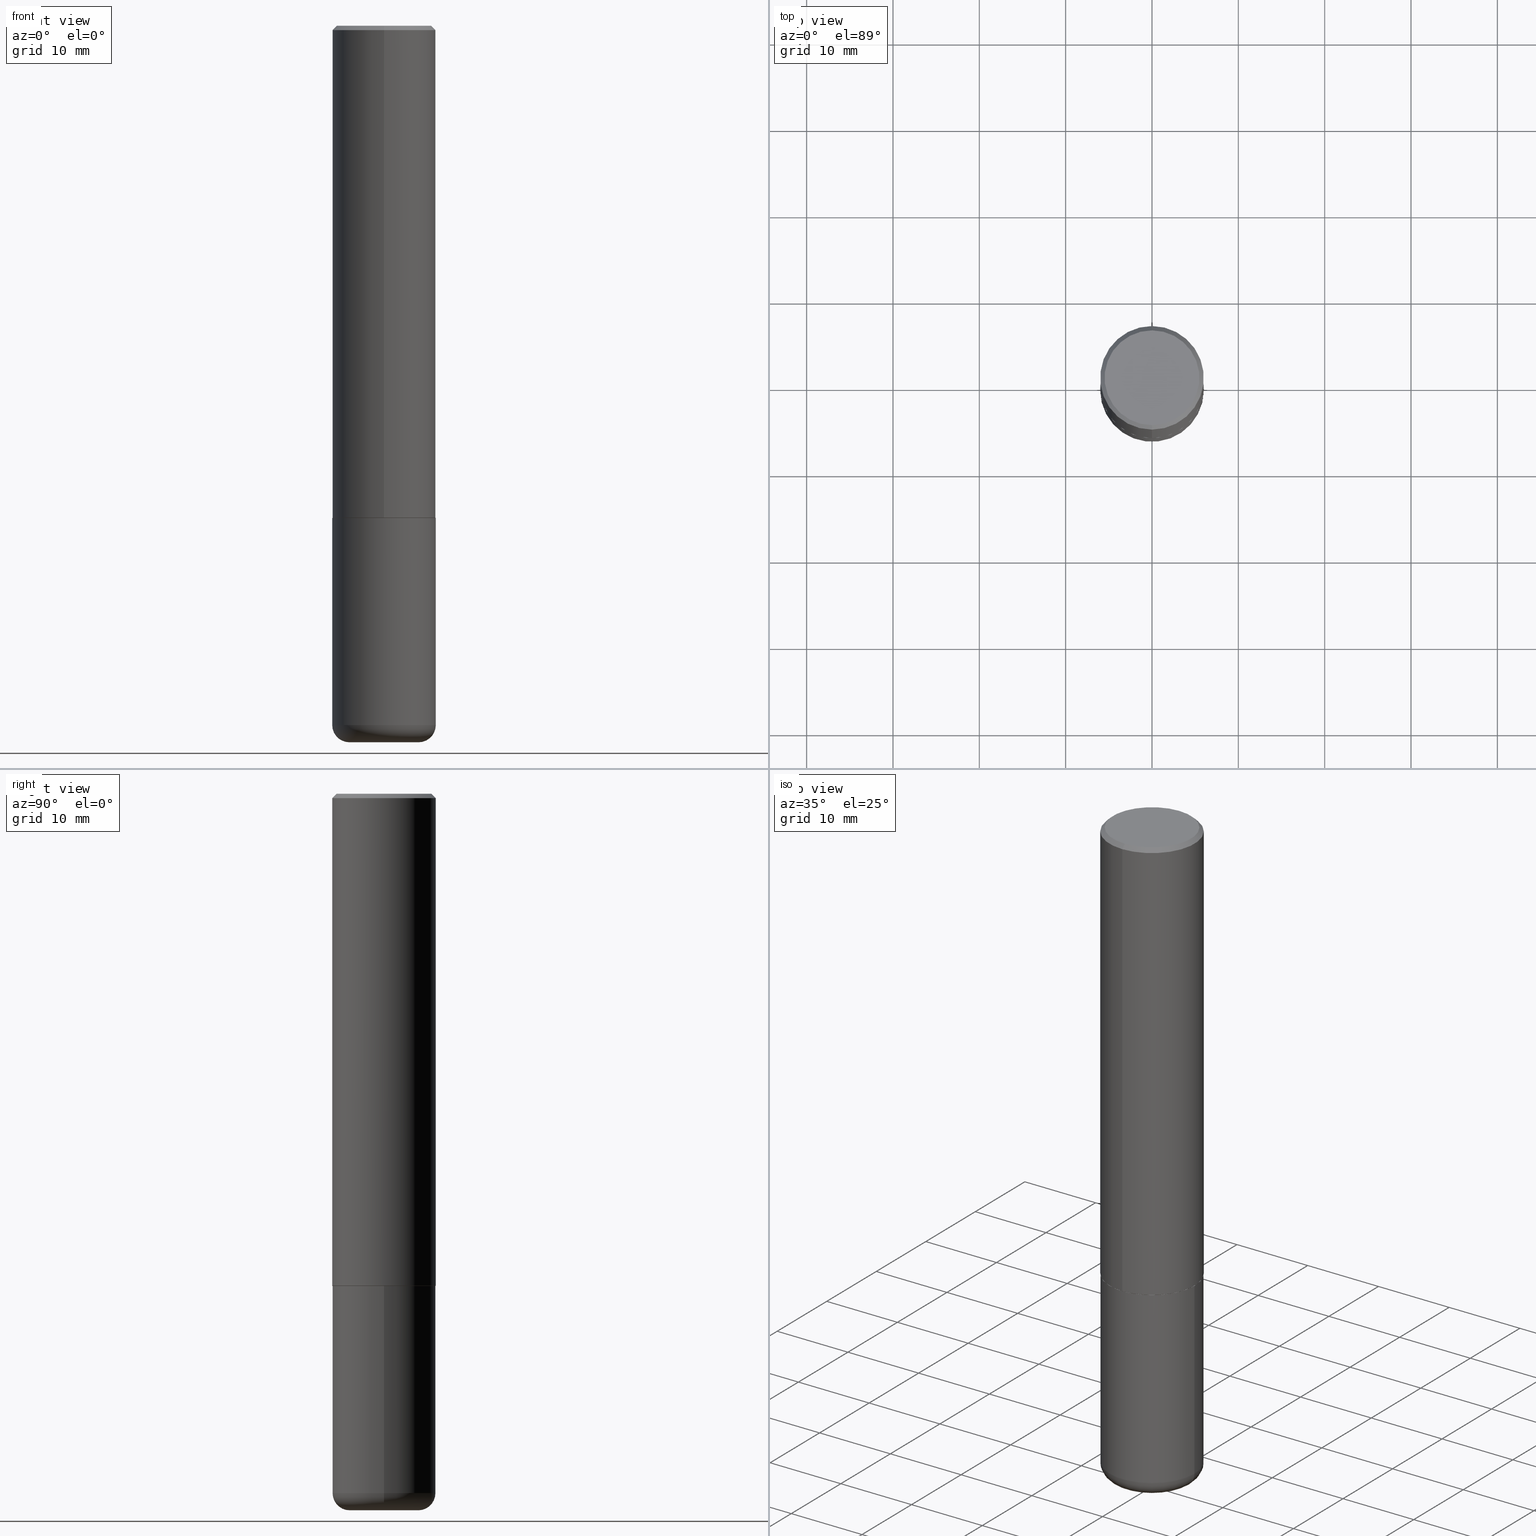
[diagram: canonical four-view strip — front | top / right | iso, engineering-drawing reading convention]
A machine part, canonical four-view strip (front | top / right | iso — engineering-drawing reading convention). The complete STEP part file that produces these views, byte-faithful:
ISO-10303-21;
HEADER;
FILE_DESCRIPTION (( 'STEP AP203' ),
    '1' );
FILE_NAME ('44826.STEP',
    '2024-03-04T09:09:32',
    ( '' ),
    ( '' ),
    'SwSTEP 2.0',
    'SolidWorks 2023',
    '' );
FILE_SCHEMA (( 'CONFIG_CONTROL_DESIGN' ));
ENDSEC;

DATA;
#1 = CARTESIAN_POINT ( 'NONE',  ( 1.509716530915772493E-15, 0.2162000000000002531, -8.528219716884274553E-16 ) ) ;
#2 = LENGTH_MEASURE_WITH_UNIT ( LENGTH_MEASURE( 0.02539999999999999897 ), #323 );
#3 = FACE_OUTER_BOUND ( 'NONE', #381, .T. ) ;
#4 = DIRECTION ( 'NONE',  ( -2.445468806185136597E-29, 3.491481338843145583E-15, 1.000000000000000000 ) ) ;
#5 = APPLICATION_PROTOCOL_DEFINITION ( 'international standard', 'config_control_design', 1994, #225 ) ;
#6 = COORDINATED_UNIVERSAL_TIME_OFFSET ( 5, 0, .BEHIND. ) ;
#7 = CARTESIAN_POINT ( 'NONE',  ( 1.678301941865357577E-15, 0.2362000000000001598, -8.242244922156373274E-16 ) ) ;
#8 = APPROVAL_STATUS ( 'not_yet_approved' ) ;
#9 = ADVANCED_FACE ( 'NONE', ( #148 ), #133, .F. ) ;
#10 = CYLINDRICAL_SURFACE ( 'NONE', #312, 0.2361999999999999933 ) ;
#11 = VECTOR ( 'NONE', #412, 39.37007874015748143 ) ;
#12 = CARTESIAN_POINT ( 'NONE',  ( -1.649375784469497117E-15, -0.2362000000000001598, 8.242244922156373274E-16 ) ) ;
#13 = DIRECTION ( 'NONE',  ( -2.446838791383407035E-29, 3.489519442064507417E-15, 1.000000000000000000 ) ) ;
#14 = EDGE_LOOP ( 'NONE', ( #418, #188 ) ) ;
#15 = ORIENTED_EDGE ( 'NONE', *, *, #351, .T. ) ;
#16 = LINE ( 'NONE', #164, #355 ) ;
#17 = DIRECTION ( 'NONE',  ( -2.446838791383407035E-29, 3.489519442064507417E-15, 1.000000000000000000 ) ) ;
#18 = VECTOR ( 'NONE', #51, 39.37007874015748143 ) ;
#19 = FACE_OUTER_BOUND ( 'NONE', #87, .T. ) ;
#20 = LINE ( 'NONE', #140, #11 ) ;
#21 = CARTESIAN_POINT ( 'NONE',  ( 5.490950931743504079E-29, -7.830830579936960724E-15, -2.244099999999999984 ) ) ;
#22 = LOCAL_TIME ( 4, 9, 32.00000000000000000, #6 ) ;
#23 = EDGE_CURVE ( 'NONE', #155, #73, #348, .T. ) ;
#24 = EDGE_CURVE ( 'NONE', #192, #155, #195, .T. ) ;
#25 = CIRCLE ( 'NONE', #268, 0.2162000000000002531 ) ;
#26 = CARTESIAN_POINT ( 'NONE',  ( 0.000000000000000000, 0.000000000000000000, 0.000000000000000000 ) ) ;
#27 = ORIENTED_EDGE ( 'NONE', *, *, #352, .F. ) ;
#28 = EDGE_LOOP ( 'NONE', ( #15, #145, #156, #407 ) ) ;
#29 = ORIENTED_EDGE ( 'NONE', *, *, #142, .T. ) ;
#30 = AXIS2_PLACEMENT_3D ( 'NONE', #387, #89, #34 ) ;
#31 = ORIENTED_EDGE ( 'NONE', *, *, #79, .F. ) ;
#32 = APPROVAL_STATUS ( 'not_yet_approved' ) ;
#33 = DIRECTION ( 'NONE',  ( 2.446838791383406475E-29, -3.489519442064507417E-15, -1.000000000000000000 ) ) ;
#34 = DIRECTION ( 'NONE',  ( 1.000000000000000000, -6.982962677686266711E-15, 4.883557194083113462E-29 ) ) ;
#35 = ORIENTED_EDGE ( 'NONE', *, *, #285, .T. ) ;
#36 = SECURITY_CLASSIFICATION ( '', '', #78 ) ;
#37 = PERSON_AND_ORGANIZATION ( #394, #191 ) ;
#38 = CARTESIAN_POINT ( 'NONE',  ( 0.2361999999999999933, -1.649375784469496131E-15, 1.151752954443000088E-29 ) ) ;
#39 = ORIENTED_EDGE ( 'NONE', *, *, #369, .T. ) ;
#40 = CARTESIAN_POINT ( 'NONE',  ( -0.1575000000000000011, -9.873020404910514350E-15, -3.267700000000000049 ) ) ;
#41 = DIRECTION ( 'NONE',  ( -2.446838791383407035E-29, 3.489519442064507417E-15, 1.000000000000000000 ) ) ;
#42 = ORIENTED_EDGE ( 'NONE', *, *, #207, .T. ) ;
#43 = COORDINATED_UNIVERSAL_TIME_OFFSET ( 5, 0, .BEHIND. ) ;
#44 = CARTESIAN_POINT ( 'NONE',  ( -0.2361999999999999655, -9.456032047705438285E-15, -3.189000000000000501 ) ) ;
#45 = CARTESIAN_POINT ( 'NONE',  ( 4.814785055848277304E-45, -6.866527586905309216E-31, -1.967757366281604609E-16 ) ) ;
#46 = CC_DESIGN_SECURITY_CLASSIFICATION ( #36, ( #206 ) ) ;
#47 = CC_DESIGN_PERSON_AND_ORGANIZATION_ASSIGNMENT ( #175, #346, ( #206 ) ) ;
#48 = CARTESIAN_POINT ( 'NONE',  ( 7.991058417971171713E-29, -1.140911357093774644E-14, -3.267700000000000049 ) ) ;
#49 = AXIS2_PLACEMENT_3D ( 'NONE', #238, #13, #132 ) ;
#50 = CYLINDRICAL_SURFACE ( 'NONE', #121, 0.2361999999999999933 ) ;
#51 = DIRECTION ( 'NONE',  ( 5.024295867789349022E-15, 0.7071067811867310926, 0.7071067811863640529 ) ) ;
#52 = ADVANCED_FACE ( 'NONE', ( #218 ), #353, .T. ) ;
#53 = APPROVAL_PERSON_ORGANIZATION ( #297, #304, #91 ) ;
#54 = EDGE_CURVE ( 'NONE', #321, #182, #66, .T. ) ;
#55 = DIMENSIONAL_EXPONENTS ( 1.000000000000000000, 0.000000000000000000, 0.000000000000000000, 0.000000000000000000, 0.000000000000000000, 0.000000000000000000, 0.000000000000000000 ) ;
#56 = DIRECTION ( 'NONE',  ( -2.445468806185136597E-29, 3.491481338843145583E-15, 1.000000000000000000 ) ) ;
#57 = CIRCLE ( 'NONE', #298, 0.2351999999999999924 ) ;
#58 = DIRECTION ( 'NONE',  ( 1.000000000000000000, -6.982962677686266711E-15, 4.883557194083113462E-29 ) ) ;
#59 = ADVANCED_FACE ( 'NONE', ( #3 ), #349, .T. ) ;
#60 = ORIENTED_EDGE ( 'NONE', *, *, #24, .T. ) ;
#61 = FACE_OUTER_BOUND ( 'NONE', #253, .T. ) ;
#62 = UNCERTAINTY_MEASURE_WITH_UNIT (LENGTH_MEASURE( 1.000000000000000082E-05 ), #176, 'distance_accuracy_value', 'NONE');
#63 = CARTESIAN_POINT ( 'NONE',  ( 4.893677582766832883E-31, -6.979038884129041064E-17, -0.02000000000000007674 ) ) ;
#64 = CALENDAR_DATE ( 2024, 4, 3 ) ;
#65 = CLOSED_SHELL ( 'NONE', ( #93, #59, #9, #378, #240, #83 ) ) ;
#66 = CIRCLE ( 'NONE', #168, 0.2362000000000000210 ) ;
#67 = DIRECTION ( 'NONE',  ( 2.438088387897960049E-29, -3.491481338843145188E-15, -1.000000000000000000 ) ) ;
#68 = ORIENTED_EDGE ( 'NONE', *, *, #331, .F. ) ;
#69 = CALENDAR_DATE ( 2024, 4, 3 ) ;
#70 = ORIENTED_EDGE ( 'NONE', *, *, #54, .T. ) ;
#71 = ORIENTED_EDGE ( 'NONE', *, *, #134, .T. ) ;
#72 = DIRECTION ( 'NONE',  ( -2.445468806185136597E-29, 3.491481338843145583E-15, 1.000000000000000000 ) ) ;
#73 = VERTEX_POINT ( 'NONE', #339 ) ;
#74 = ORIENTED_EDGE ( 'NONE', *, *, #285, .F. ) ;
#75 = CARTESIAN_POINT ( 'NONE',  ( 0.000000000000000000, 0.000000000000000000, 0.000000000000000000 ) ) ;
#76 = ORIENTED_EDGE ( 'NONE', *, *, #244, .T. ) ;
#77 = CARTESIAN_POINT ( 'NONE',  ( 0.000000000000000000, 0.000000000000000000, 0.000000000000000000 ) ) ;
#78 = SECURITY_CLASSIFICATION_LEVEL ( 'unclassified' ) ;
#79 = EDGE_CURVE ( 'NONE', #332, #360, #106, .T. ) ;
#80 = CIRCLE ( 'NONE', #212, 0.2362000000000002986 ) ;
#81 = AXIS2_PLACEMENT_3D ( 'NONE', #248, #291, #126 ) ;
#82 = PRODUCT ( '44826', '44826', '', ( #88 ) ) ;
#83 = ADVANCED_FACE ( 'NONE', ( #368 ), #252, .T. ) ;
#84 = PERSON_AND_ORGANIZATION_ROLE ( 'classification_officer' ) ;
#85 = AXIS2_PLACEMENT_3D ( 'NONE', #396, #311, #101 ) ;
#86 = DIRECTION ( 'NONE',  ( -6.982962677686265133E-15, -1.000000000000000000, 3.484499991918703113E-15 ) ) ;
#87 = EDGE_LOOP ( 'NONE', ( #260, #393 ) ) ;
#88 = MECHANICAL_CONTEXT ( 'NONE', #225, 'mechanical' ) ;
#89 = DIRECTION ( 'NONE',  ( -2.445468806185136597E-29, 3.491481338843145583E-15, 1.000000000000000000 ) ) ;
#90 = VERTEX_POINT ( 'NONE', #295 ) ;
#91 = APPROVAL_ROLE ( '' ) ;
#92 = PERSON_AND_ORGANIZATION_ROLE ( 'creator' ) ;
#93 = ADVANCED_FACE ( 'NONE', ( #213 ), #10, .T. ) ;
#94 = DIRECTION ( 'NONE',  ( 2.438088387897960049E-29, -3.491481338843145188E-15, -1.000000000000000000 ) ) ;
#95 = ORIENTED_EDGE ( 'NONE', *, *, #352, .T. ) ;
#96 = SHAPE_DEFINITION_REPRESENTATION ( #171, #317 ) ;
#97 = CARTESIAN_POINT ( 'NONE',  ( 5.490950931743504079E-29, -7.830830579936960724E-15, -2.244099999999999984 ) ) ;
#98 = COORDINATED_UNIVERSAL_TIME_OFFSET ( 5, 0, .BEHIND. ) ;
#99 = CARTESIAN_POINT ( 'NONE',  ( 0.000000000000000000, 0.000000000000000000, 0.000000000000000000 ) ) ;
#100 = DIRECTION ( 'NONE',  ( -2.445468806185136597E-29, 3.491481338843145583E-15, 1.000000000000000000 ) ) ;
#101 = DIRECTION ( 'NONE',  ( 1.000000000000000000, -6.982962677686275388E-15, 0.000000000000000000 ) ) ;
#102 = CC_DESIGN_PERSON_AND_ORGANIZATION_ASSIGNMENT ( #409, #84, ( #36 ) ) ;
#103 = CARTESIAN_POINT ( 'NONE',  ( 0.1575000000000000011, -1.250893019267333313E-14, -3.267700000000000049 ) ) ;
#104 = PERSON_AND_ORGANIZATION ( #394, #191 ) ;
#105 = LINE ( 'NONE', #263, #18 ) ;
#106 = CIRCLE ( 'NONE', #81, 0.1575000000000000011 ) ;
#107 = DIRECTION ( 'NONE',  ( -2.446838791383407035E-29, 3.489519442064507417E-15, 1.000000000000000000 ) ) ;
#108 = LINE ( 'NONE', #204, #376 ) ;
#109 = FACE_OUTER_BOUND ( 'NONE', #28, .T. ) ;
#110 = CARTESIAN_POINT ( 'NONE',  ( 4.893677582766832883E-31, -6.979038884129041064E-17, -0.02000000000000007674 ) ) ;
#111 = APPROVAL ( #251, 'UNSPECIFIED' ) ;
#112 = VECTOR ( 'NONE', #299, 39.37007874015748143 ) ;
#113 = AXIS2_PLACEMENT_3D ( 'NONE', #307, #265, #398 ) ;
#114 = VERTEX_POINT ( 'NONE', #266 ) ;
#115 = EDGE_CURVE ( 'NONE', #90, #182, #270, .T. ) ;
#116 = DIRECTION ( 'NONE',  ( 1.000000000000000000, -6.982962677686265133E-15, 0.000000000000000000 ) ) ;
#117 = AXIS2_PLACEMENT_3D ( 'NONE', #215, #67, #184 ) ;
#118 = CIRCLE ( 'NONE', #403, 0.2362000000000002986 ) ;
#119 = ORIENTED_EDGE ( 'NONE', *, *, #120, .F. ) ;
#120 = EDGE_CURVE ( 'NONE', #192, #283, #326, .T. ) ;
#121 = AXIS2_PLACEMENT_3D ( 'NONE', #77, #100, #137 ) ;
#122 = EDGE_LOOP ( 'NONE', ( #385, #162, #95, #232 ) ) ;
#123 = CARTESIAN_POINT ( 'NONE',  ( 1.649375784469496722E-15, 0.2361999999999999655, -0.02000000000000090247 ) ) ;
#124 = EDGE_CURVE ( 'NONE', #114, #321, #108, .T. ) ;
#125 = APPROVAL_DATE_TIME ( #329, #111 ) ;
#126 = DIRECTION ( 'NONE',  ( 1.000000000000000000, -6.982962677686261977E-15, 0.000000000000000000 ) ) ;
#127 = VECTOR ( 'NONE', #187, 39.37007874015748143 ) ;
#128 = ORIENTED_EDGE ( 'NONE', *, *, #207, .F. ) ;
#129 = VERTEX_POINT ( 'NONE', #166 ) ;
#130 = CARTESIAN_POINT ( 'NONE',  ( -0.1575000000000000011, -1.001522918074863550E-14, -3.189000000000000501 ) ) ;
#131 = PERSON_AND_ORGANIZATION ( #394, #191 ) ;
#132 = DIRECTION ( 'NONE',  ( -6.982962677686265133E-15, -1.000000000000000000, 3.484499991918703113E-15 ) ) ;
#133 = PLANE ( 'NONE',  #117 ) ;
#134 = EDGE_CURVE ( 'NONE', #365, #287, #150, .T. ) ;
#135 = DIRECTION ( 'NONE',  ( -6.982962677686265922E-15, -1.000000000000000000, 3.489519442064507812E-15 ) ) ;
#136 = DIRECTION ( 'NONE',  ( 1.000000000000000000, -6.982962677686266711E-15, 4.876176775795936353E-29 ) ) ;
#137 = DIRECTION ( 'NONE',  ( 1.000000000000000000, -6.982962677686266711E-15, 4.876176775795936353E-29 ) ) ;
#138 = TOROIDAL_SURFACE ( 'NONE', #281, 0.1575000000000000011, 0.07869999999999995055 ) ;
#139 = CARTESIAN_POINT ( 'NONE',  ( 5.490950931743504079E-29, -7.830830579936960724E-15, -2.244100000000000428 ) ) ;
#140 = CARTESIAN_POINT ( 'NONE',  ( -0.2361999999999999933, 1.678301941865356591E-15, -1.161852468318208757E-29 ) ) ;
#141 = VECTOR ( 'NONE', #415, 39.37007874015748143 ) ;
#142 = EDGE_CURVE ( 'NONE', #182, #321, #185, .T. ) ;
#143 = APPLICATION_CONTEXT ( 'configuration controlled 3d designs of mechanical parts and assemblies' ) ;
#144 = DIRECTION ( 'NONE',  ( 4.937700262164536209E-15, 0.7071067811865434649, -0.7071067811865516806 ) ) ;
#145 = ORIENTED_EDGE ( 'NONE', *, *, #152, .T. ) ;
#146 = EDGE_LOOP ( 'NONE', ( #417, #42, #60, #391 ) ) ;
#147 = DIRECTION ( 'NONE',  ( -2.446838791383407035E-29, 3.489519442064507417E-15, 1.000000000000000000 ) ) ;
#148 = FACE_OUTER_BOUND ( 'NONE', #14, .T. ) ;
#149 = ORIENTED_EDGE ( 'NONE', *, *, #79, .T. ) ;
#150 = CIRCLE ( 'NONE', #49, 0.2351999999999999924 ) ;
#151 = DIRECTION ( 'NONE',  ( -2.446838791383407035E-29, 3.489519442064507417E-15, 1.000000000000000000 ) ) ;
#152 = EDGE_CURVE ( 'NONE', #365, #209, #105, .T. ) ;
#153 = DATE_AND_TIME ( #220, #22 ) ;
#154 = COORDINATED_UNIVERSAL_TIME_OFFSET ( 5, 0, .BEHIND. ) ;
#155 = VERTEX_POINT ( 'NONE', #269 ) ;
#156 = ORIENTED_EDGE ( 'NONE', *, *, #319, .F. ) ;
#157 = DIRECTION ( 'NONE',  ( -1.000000000000000000, 6.982962677686265922E-15, -4.876176775795935793E-29 ) ) ;
#158 = DIRECTION ( 'NONE',  ( 7.105427357601001859E-15, 1.000000000000000000, -3.491481338843145583E-15 ) ) ;
#159 = COORDINATED_UNIVERSAL_TIME_OFFSET ( 5, 0, .BEHIND. ) ;
#160 = EDGE_CURVE ( 'NONE', #360, #192, #178, .T. ) ;
#161 = AXIS2_PLACEMENT_3D ( 'NONE', #388, #94, #157 ) ;
#162 = ORIENTED_EDGE ( 'NONE', *, *, #183, .T. ) ;
#163 = LOCAL_TIME ( 4, 9, 32.00000000000000000, #43 ) ;
#164 = CARTESIAN_POINT ( 'NONE',  ( -1.642392821791754699E-15, -0.2352000000000078195, -2.244099999999999095 ) ) ;
#165 = CALENDAR_DATE ( 2024, 4, 3 ) ;
#166 = CARTESIAN_POINT ( 'NONE',  ( -1.649375784469443277E-15, -0.2362000000000081257, -2.243099999999999206 ) ) ;
#167 = DIRECTION ( 'NONE',  ( -2.446838791383407035E-29, 3.489519442064507417E-15, 1.000000000000000000 ) ) ;
#168 = AXIS2_PLACEMENT_3D ( 'NONE', #63, #151, #290 ) ;
#169 = CC_DESIGN_PERSON_AND_ORGANIZATION_ASSIGNMENT ( #37, #92, ( #279 ) ) ;
#170 = FACE_OUTER_BOUND ( 'NONE', #358, .T. ) ;
#171 = PRODUCT_DEFINITION_SHAPE ( 'NONE', 'NONE',  #279 ) ;
#172 = LOCAL_TIME ( 4, 9, 32.00000000000000000, #154 ) ;
#173 = PERSON_AND_ORGANIZATION ( #394, #191 ) ;
#174 = CC_DESIGN_PERSON_AND_ORGANIZATION_ASSIGNMENT ( #173, #274, ( #206 ) ) ;
#175 = PERSON_AND_ORGANIZATION ( #394, #191 ) ;
#176 =( CONVERSION_BASED_UNIT ( 'INCH', #2 ) LENGTH_UNIT ( ) NAMED_UNIT ( #55 ) );
#177 = ORIENTED_EDGE ( 'NONE', *, *, #24, .F. ) ;
#178 = CIRCLE ( 'NONE', #85, 0.07869999999999993667 ) ;
#179 = EDGE_CURVE ( 'NONE', #283, #73, #20, .T. ) ;
#180 = CARTESIAN_POINT ( 'NONE',  ( 5.487876547960065873E-29, -7.835233272497903917E-15, -2.244100000000000428 ) ) ;
#181 = CYLINDRICAL_SURFACE ( 'NONE', #410, 0.2362000000000001598 ) ;
#182 = VERTEX_POINT ( 'NONE', #123 ) ;
#183 = EDGE_CURVE ( 'NONE', #209, #129, #118, .T. ) ;
#184 = DIRECTION ( 'NONE',  ( -1.000000000000000000, 6.982962677686265922E-15, -4.876176775795935793E-29 ) ) ;
#185 = CIRCLE ( 'NONE', #400, 0.2362000000000000210 ) ;
#186 = DIRECTION ( 'NONE',  ( 1.000000000000000000, -6.982962677686265133E-15, 0.000000000000000000 ) ) ;
#187 = DIRECTION ( 'NONE',  ( -2.445468806185136877E-29, 3.491481338843145188E-15, 1.000000000000000000 ) ) ;
#188 = ORIENTED_EDGE ( 'NONE', *, *, #242, .T. ) ;
#189 = CARTESIAN_POINT ( 'NONE',  ( 1.678301941865385779E-15, 0.2361999999999924715, -2.243100000000000982 ) ) ;
#190 = EDGE_LOOP ( 'NONE', ( #74, #243, #70, #380 ) ) ;
#191 = ORGANIZATION ( 'UNSPECIFIED', 'UNSPECIFIED', '' ) ;
#192 = VERTEX_POINT ( 'NONE', #357 ) ;
#193 = EDGE_CURVE ( 'NONE', #209, #182, #363, .T. ) ;
#194 = DIRECTION ( 'NONE',  ( 6.982962677686265922E-15, 1.000000000000000000, -3.489519442064507417E-15 ) ) ;
#195 = LINE ( 'NONE', #38, #127 ) ;
#196 = DIRECTION ( 'NONE',  ( -6.982962677686265922E-15, -1.000000000000000000, 3.469747663417772663E-15 ) ) ;
#197 = AXIS2_PLACEMENT_3D ( 'NONE', #48, #72, #261 ) ;
#198 = DIRECTION ( 'NONE',  ( -6.982962677686265133E-15, -1.000000000000000000, 3.484499991918703113E-15 ) ) ;
#199 = AXIS2_PLACEMENT_3D ( 'NONE', #310, #233, #267 ) ;
#200 = CARTESIAN_POINT ( 'NONE',  ( 0.000000000000000000, 0.000000000000000000, 0.000000000000000000 ) ) ;
#201 = LOCAL_TIME ( 4, 9, 32.00000000000000000, #159 ) ;
#202 = DIRECTION ( 'NONE',  ( -6.982962677686265922E-15, -1.000000000000000000, 3.489519442064507417E-15 ) ) ;
#203 = APPROVAL ( #8, 'UNSPECIFIED' ) ;
#204 = CARTESIAN_POINT ( 'NONE',  ( -1.620449627073635276E-15, -0.2362000000000001043, -0.01999999999999925449 ) ) ;
#205 = AXIS2_PLACEMENT_3D ( 'NONE', #45, #401, #202 ) ;
#206 = PRODUCT_DEFINITION_FORMATION_WITH_SPECIFIED_SOURCE ( 'ANY', '', #82, .NOT_KNOWN. ) ;
#207 = EDGE_CURVE ( 'NONE', #283, #192, #308, .T. ) ;
#208 = CIRCLE ( 'NONE', #205, 0.2162000000000002531 ) ;
#209 = VERTEX_POINT ( 'NONE', #189 ) ;
#210 = CC_DESIGN_APPROVAL ( #203, ( #206 ) ) ;
#211 = CARTESIAN_POINT ( 'NONE',  ( 7.798600022924401307E-29, -1.113433398957079310E-14, -3.189000000000000501 ) ) ;
#212 = AXIS2_PLACEMENT_3D ( 'NONE', #395, #344, #196 ) ;
#213 = FACE_OUTER_BOUND ( 'NONE', #302, .T. ) ;
#214 = DIRECTION ( 'NONE',  ( -6.982962677686265922E-15, -1.000000000000000000, 3.489519442064507812E-15 ) ) ;
#215 = CARTESIAN_POINT ( 'NONE',  ( 5.487876547960065873E-29, -7.835233272497903917E-15, -2.244100000000000428 ) ) ;
#216 = CARTESIAN_POINT ( 'NONE',  ( 7.798600022924401307E-29, -1.113433398957079310E-14, -3.189000000000000501 ) ) ;
#217 = PERSON_AND_ORGANIZATION_ROLE ( 'design_owner' ) ;
#218 = FACE_OUTER_BOUND ( 'NONE', #397, .T. ) ;
#219 = ORIENTED_EDGE ( 'NONE', *, *, #23, .F. ) ;
#220 = CALENDAR_DATE ( 2024, 4, 3 ) ;
#221 = AXIS2_PLACEMENT_3D ( 'NONE', #264, #41, #86 ) ;
#222 = DIRECTION ( 'NONE',  ( -2.446838791383407035E-29, 3.489519442064507417E-15, 1.000000000000000000 ) ) ;
#223 = EDGE_LOOP ( 'NONE', ( #356, #31 ) ) ;
#224 = ORIENTED_EDGE ( 'NONE', *, *, #354, .T. ) ;
#225 = APPLICATION_CONTEXT ( 'configuration controlled 3d designs of mechanical parts and assemblies' ) ;
#226 = DIRECTION ( 'NONE',  ( -6.982962677686265133E-15, -1.000000000000000000, 3.484499991918703113E-15 ) ) ;
#227 = DATE_AND_TIME ( #262, #229 ) ;
#228 = ORIENTED_EDGE ( 'NONE', *, *, #120, .T. ) ;
#229 = LOCAL_TIME ( 4, 9, 32.00000000000000000, #98 ) ;
#230 = CYLINDRICAL_SURFACE ( 'NONE', #234, 0.2362000000000001598 ) ;
#231 =( NAMED_UNIT ( * ) PLANE_ANGLE_UNIT ( ) SI_UNIT ( $, .RADIAN. ) );
#232 = ORIENTED_EDGE ( 'NONE', *, *, #142, .F. ) ;
#233 = DIRECTION ( 'NONE',  ( 2.446838791383407035E-29, -3.489519442064507417E-15, -1.000000000000000000 ) ) ;
#234 = AXIS2_PLACEMENT_3D ( 'NONE', #75, #303, #135 ) ;
#235 = PLANE ( 'NONE',  #404 ) ;
#236 = CC_DESIGN_DATE_AND_TIME_ASSIGNMENT ( #372, #250, ( #36 ) ) ;
#237 = FACE_OUTER_BOUND ( 'NONE', #296, .T. ) ;
#238 = CARTESIAN_POINT ( 'NONE',  ( 5.490950931743504079E-29, -7.830830579936960724E-15, -2.244099999999999984 ) ) ;
#239 = AXIS2_PLACEMENT_3D ( 'NONE', #130, #158, #345 ) ;
#240 = ADVANCED_FACE ( 'NONE', ( #320 ), #138, .T. ) ;
#241 = AXIS2_PLACEMENT_3D ( 'NONE', #180, #4, #318 ) ;
#242 = EDGE_CURVE ( 'NONE', #73, #155, #361, .T. ) ;
#243 = ORIENTED_EDGE ( 'NONE', *, *, #124, .T. ) ;
#244 = EDGE_CURVE ( 'NONE', #90, #114, #25, .T. ) ;
#245 = FACE_OUTER_BOUND ( 'NONE', #122, .T. ) ;
#246 = CARTESIAN_POINT ( 'NONE',  ( 5.487876547960065873E-29, -7.835233272497903917E-15, -2.244100000000000428 ) ) ;
#247 =( NAMED_UNIT ( * ) SI_UNIT ( $, .STERADIAN. ) SOLID_ANGLE_UNIT ( ) );
#248 = CARTESIAN_POINT ( 'NONE',  ( 7.991058417971171713E-29, -1.140911357093774644E-14, -3.267700000000000049 ) ) ;
#249 =( GEOMETRIC_REPRESENTATION_CONTEXT ( 3 ) GLOBAL_UNCERTAINTY_ASSIGNED_CONTEXT ( ( #62 ) ) GLOBAL_UNIT_ASSIGNED_CONTEXT ( ( #176, #231, #247 ) ) REPRESENTATION_CONTEXT ( 'NONE', 'WORKASPACE' ) );
#250 = DATE_TIME_ROLE ( 'classification_date' ) ;
#251 = APPROVAL_STATUS ( 'not_yet_approved' ) ;
#252 = PLANE ( 'NONE',  #161 ) ;
#253 = EDGE_LOOP ( 'NONE', ( #76, #35 ) ) ;
#254 = APPROVAL_DATE_TIME ( #153, #304 ) ;
#255 = AXIS2_PLACEMENT_3D ( 'NONE', #280, #408, #116 ) ;
#256 = DIRECTION ( 'NONE',  ( -2.445468806185136597E-29, 3.491481338843145583E-15, 1.000000000000000000 ) ) ;
#257 = APPROVAL_ROLE ( '' ) ;
#258 = ADVANCED_FACE ( 'NONE', ( #245 ), #181, .T. ) ;
#259 = ORIENTED_EDGE ( 'NONE', *, *, #331, .T. ) ;
#260 = ORIENTED_EDGE ( 'NONE', *, *, #351, .F. ) ;
#261 = DIRECTION ( 'NONE',  ( 1.000000000000000000, -6.982962677686261977E-15, 0.000000000000000000 ) ) ;
#262 = CALENDAR_DATE ( 2024, 4, 3 ) ;
#263 = CARTESIAN_POINT ( 'NONE',  ( 1.671196514507810212E-15, 0.2351999999999921653, -2.244100000000000872 ) ) ;
#264 = CARTESIAN_POINT ( 'NONE',  ( 5.490950931743504079E-29, -7.830830579936960724E-15, -2.244099999999999984 ) ) ;
#265 = DIRECTION ( 'NONE',  ( 2.446838791383407035E-29, -3.489519442064507417E-15, -1.000000000000000000 ) ) ;
#266 = CARTESIAN_POINT ( 'NONE',  ( -1.551844647095920733E-15, -0.2162000000000002531, 5.576583667461869735E-16 ) ) ;
#267 = DIRECTION ( 'NONE',  ( 6.982962677686265922E-15, 1.000000000000000000, -3.487819265831411350E-15 ) ) ;
#268 = AXIS2_PLACEMENT_3D ( 'NONE', #322, #147, #289 ) ;
#269 = CARTESIAN_POINT ( 'NONE',  ( 0.2361999999999999933, -9.484609056967400443E-15, -2.244100000000000428 ) ) ;
#270 = LINE ( 'NONE', #277, #275 ) ;
#271 = DIRECTION ( 'NONE',  ( -2.446838791383406475E-29, 3.489519442064507417E-15, 1.000000000000000000 ) ) ;
#272 = CC_DESIGN_APPROVAL ( #304, ( #36 ) ) ;
#273 = ADVANCED_FACE ( 'NONE', ( #61 ), #328, .F. ) ;
#274 = PERSON_AND_ORGANIZATION_ROLE ( 'creator' ) ;
#275 = VECTOR ( 'NONE', #144, 39.37007874015748143 ) ;
#276 = CONICAL_SURFACE ( 'NONE', #113, 0.2362000000000000210, 0.7853981633974459475 ) ;
#277 = CARTESIAN_POINT ( 'NONE',  ( 1.649375784469496722E-15, 0.2361999999999999655, -0.02000000000000090247 ) ) ;
#278 = AXIS2_PLACEMENT_3D ( 'NONE', #200, #371, #364 ) ;
#279 = PRODUCT_DEFINITION ( 'UNKNOWN', '', #206, #324 ) ;
#280 = CARTESIAN_POINT ( 'NONE',  ( 7.798600022924401307E-29, -1.113433398957079310E-14, -3.189000000000000501 ) ) ;
#281 = AXIS2_PLACEMENT_3D ( 'NONE', #211, #56, #58 ) ;
#282 = CONICAL_SURFACE ( 'NONE', #199, 0.2362000000000000210, 0.7853981633974459475 ) ;
#283 = VERTEX_POINT ( 'NONE', #44 ) ;
#284 = CARTESIAN_POINT ( 'NONE',  ( 5.488504092952120537E-29, -7.827341060494897123E-15, -2.243100000000000094 ) ) ;
#285 = EDGE_CURVE ( 'NONE', #114, #90, #208, .T. ) ;
#286 = ORIENTED_EDGE ( 'NONE', *, *, #193, .T. ) ;
#287 = VERTEX_POINT ( 'NONE', #336 ) ;
#288 = CONICAL_SURFACE ( 'NONE', #340, 0.2351999999999999924, 0.7853981633977044075 ) ;
#289 = DIRECTION ( 'NONE',  ( -6.982962677686265922E-15, -1.000000000000000000, 3.489519442064507417E-15 ) ) ;
#290 = DIRECTION ( 'NONE',  ( -6.982962677686265922E-15, -1.000000000000000000, 3.487819265831411350E-15 ) ) ;
#291 = DIRECTION ( 'NONE',  ( -2.445468806185136597E-29, 3.491481338843145583E-15, 1.000000000000000000 ) ) ;
#292 = EDGE_LOOP ( 'NONE', ( #68, #149, #301, #128 ) ) ;
#293 = DIRECTION ( 'NONE',  ( -6.982962677686265922E-15, -1.000000000000000000, 3.469747663417772663E-15 ) ) ;
#294 = DATE_AND_TIME ( #69, #201 ) ;
#295 = CARTESIAN_POINT ( 'NONE',  ( 1.579546157692634608E-15, 0.2162000000000002531, -9.512098400025077474E-16 ) ) ;
#296 = EDGE_LOOP ( 'NONE', ( #325, #314, #362, #29 ) ) ;
#297 = PERSON_AND_ORGANIZATION ( #394, #191 ) ;
#298 = AXIS2_PLACEMENT_3D ( 'NONE', #21, #107, #226 ) ;
#299 = DIRECTION ( 'NONE',  ( -2.446838791383407035E-29, 3.489519442064507417E-15, 1.000000000000000000 ) ) ;
#300 = DATE_TIME_ROLE ( 'creation_date' ) ;
#301 = ORIENTED_EDGE ( 'NONE', *, *, #160, .T. ) ;
#302 = EDGE_LOOP ( 'NONE', ( #228, #390, #219, #177 ) ) ;
#303 = DIRECTION ( 'NONE',  ( -2.446838791383407035E-29, 3.489519442064507417E-15, 1.000000000000000000 ) ) ;
#304 = APPROVAL ( #32, 'UNSPECIFIED' ) ;
#305 = DIRECTION ( 'NONE',  ( -4.937700262165812586E-15, -0.7071067811867262076, 0.7071067811863689379 ) ) ;
#306 = APPROVAL_ROLE ( '' ) ;
#307 = CARTESIAN_POINT ( 'NONE',  ( 4.893677582766832883E-31, -6.979038884129041064E-17, -0.02000000000000007674 ) ) ;
#308 = CIRCLE ( 'NONE', #416, 0.2361999999999999933 ) ;
#309 = DIRECTION ( 'NONE',  ( -4.851104656540952442E-15, -0.7071067811865483499, -0.7071067811865467956 ) ) ;
#310 = CARTESIAN_POINT ( 'NONE',  ( 4.893677582766832883E-31, -6.979038884129041064E-17, -0.02000000000000007674 ) ) ;
#311 = DIRECTION ( 'NONE',  ( -6.982962677686266711E-15, -1.000000000000000000, 3.491481338843145583E-15 ) ) ;
#312 = AXIS2_PLACEMENT_3D ( 'NONE', #99, #343, #136 ) ;
#313 = ADVANCED_FACE ( 'NONE', ( #109 ), #288, .T. ) ;
#314 = ORIENTED_EDGE ( 'NONE', *, *, #244, .F. ) ;
#315 = AXIS2_PLACEMENT_3D ( 'NONE', #246, #359, #334 ) ;
#316 = CIRCLE ( 'NONE', #239, 0.07869999999999993667 ) ;
#317 = ADVANCED_BREP_SHAPE_REPRESENTATION ( '44826', ( #338, #327, #278 ), #249 ) ;
#318 = DIRECTION ( 'NONE',  ( 1.000000000000000000, -6.982962677686269077E-15, 0.000000000000000000 ) ) ;
#319 = EDGE_CURVE ( 'NONE', #129, #209, #80, .T. ) ;
#320 = FACE_OUTER_BOUND ( 'NONE', #292, .T. ) ;
#321 = VERTEX_POINT ( 'NONE', #347 ) ;
#322 = CARTESIAN_POINT ( 'NONE',  ( 4.814785055848277304E-45, -6.866527586905309216E-31, -1.967757366281604609E-16 ) ) ;
#323 =( LENGTH_UNIT ( ) NAMED_UNIT ( * ) SI_UNIT ( $, .METRE. ) );
#324 = DESIGN_CONTEXT ( 'detailed design', #143, 'design' ) ;
#325 = ORIENTED_EDGE ( 'NONE', *, *, #124, .F. ) ;
#326 = CIRCLE ( 'NONE', #255, 0.2361999999999999933 ) ;
#327 = MANIFOLD_SOLID_BREP ( 'Body-Move/Copy2[2]', #379 ) ;
#328 = PLANE ( 'NONE',  #389 ) ;
#329 = DATE_AND_TIME ( #165, #172 ) ;
#330 = ORIENTED_EDGE ( 'NONE', *, *, #319, .T. ) ;
#331 = EDGE_CURVE ( 'NONE', #332, #283, #316, .T. ) ;
#332 = VERTEX_POINT ( 'NONE', #40 ) ;
#333 = PERSON_AND_ORGANIZATION ( #394, #191 ) ;
#334 = DIRECTION ( 'NONE',  ( 1.000000000000000000, -6.982962677686269077E-15, 0.000000000000000000 ) ) ;
#335 = ORIENTED_EDGE ( 'NONE', *, *, #160, .F. ) ;
#336 = CARTESIAN_POINT ( 'NONE',  ( -1.642392821791754699E-15, -0.2352000000000078195, -2.244099999999999095 ) ) ;
#337 = APPROVAL_DATE_TIME ( #227, #203 ) ;
#338 = MANIFOLD_SOLID_BREP ( 'Body-Move/Copy2[1]', #65 ) ;
#339 = CARTESIAN_POINT ( 'NONE',  ( -0.2361999999999999933, -7.806481689168991326E-15, -2.244100000000000428 ) ) ;
#340 = AXIS2_PLACEMENT_3D ( 'NONE', #97, #167, #198 ) ;
#341 = CARTESIAN_POINT ( 'NONE',  ( 1.674749228186611702E-15, 0.2351999999999921653, -2.244100000000000872 ) ) ;
#342 = CC_DESIGN_DATE_AND_TIME_ASSIGNMENT ( #294, #300, ( #279 ) ) ;
#343 = DIRECTION ( 'NONE',  ( -2.445468806185136597E-29, 3.491481338843145583E-15, 1.000000000000000000 ) ) ;
#344 = DIRECTION ( 'NONE',  ( -2.446838791383407035E-29, 3.489519442064507417E-15, 1.000000000000000000 ) ) ;
#345 = DIRECTION ( 'NONE',  ( -1.000000000000000000, 7.105427357600997914E-15, 0.000000000000000000 ) ) ;
#346 = PERSON_AND_ORGANIZATION_ROLE ( 'design_supplier' ) ;
#347 = CARTESIAN_POINT ( 'NONE',  ( -1.620449627073635276E-15, -0.2362000000000001043, -0.01999999999999925449 ) ) ;
#348 = CIRCLE ( 'NONE', #315, 0.2361999999999999933 ) ;
#349 = TOROIDAL_SURFACE ( 'NONE', #30, 0.1575000000000000011, 0.07869999999999995055 ) ;
#350 = DIRECTION ( 'NONE',  ( -6.982962677686265922E-15, -1.000000000000000000, 3.487819265831411350E-15 ) ) ;
#351 = EDGE_CURVE ( 'NONE', #287, #365, #57, .T. ) ;
#352 = EDGE_CURVE ( 'NONE', #129, #321, #367, .T. ) ;
#353 = CONICAL_SURFACE ( 'NONE', #221, 0.2351999999999999924, 0.7853981633977044075 ) ;
#354 = EDGE_CURVE ( 'NONE', #287, #129, #16, .T. ) ;
#355 = VECTOR ( 'NONE', #305, 39.37007874015748143 ) ;
#356 = ORIENTED_EDGE ( 'NONE', *, *, #369, .F. ) ;
#357 = CARTESIAN_POINT ( 'NONE',  ( 0.2361999999999999655, -1.278370977404028805E-14, -3.189000000000000501 ) ) ;
#358 = EDGE_LOOP ( 'NONE', ( #330, #286, #366, #27 ) ) ;
#359 = DIRECTION ( 'NONE',  ( -2.445468806185136597E-29, 3.491481338843145583E-15, 1.000000000000000000 ) ) ;
#360 = VERTEX_POINT ( 'NONE', #103 ) ;
#361 = CIRCLE ( 'NONE', #241, 0.2361999999999999933 ) ;
#362 = ORIENTED_EDGE ( 'NONE', *, *, #115, .T. ) ;
#363 = LINE ( 'NONE', #7, #141 ) ;
#364 = DIRECTION ( 'NONE',  ( 1.000000000000000000, 0.000000000000000000, 0.000000000000000000 ) ) ;
#365 = VERTEX_POINT ( 'NONE', #341 ) ;
#366 = ORIENTED_EDGE ( 'NONE', *, *, #54, .F. ) ;
#367 = LINE ( 'NONE', #12, #112 ) ;
#368 = FACE_OUTER_BOUND ( 'NONE', #223, .T. ) ;
#369 = EDGE_CURVE ( 'NONE', #360, #332, #383, .T. ) ;
#370 = FACE_OUTER_BOUND ( 'NONE', #146, .T. ) ;
#371 = DIRECTION ( 'NONE',  ( 0.000000000000000000, 0.000000000000000000, 1.000000000000000000 ) ) ;
#372 = DATE_AND_TIME ( #64, #163 ) ;
#373 = FACE_OUTER_BOUND ( 'NONE', #190, .T. ) ;
#374 = DIRECTION ( 'NONE',  ( -6.982962677686265922E-15, -1.000000000000000000, 3.489519442064507417E-15 ) ) ;
#375 = PRODUCT_RELATED_PRODUCT_CATEGORY ( 'detail', '', ( #82 ) ) ;
#376 = VECTOR ( 'NONE', #309, 39.37007874015748143 ) ;
#377 = APPROVAL_PERSON_ORGANIZATION ( #104, #111, #306 ) ;
#378 = ADVANCED_FACE ( 'NONE', ( #370 ), #50, .T. ) ;
#379 = CLOSED_SHELL ( 'NONE', ( #313, #382, #386, #392, #258, #52, #402, #273 ) ) ;
#380 = ORIENTED_EDGE ( 'NONE', *, *, #115, .F. ) ;
#381 = EDGE_LOOP ( 'NONE', ( #39, #259, #119, #335 ) ) ;
#382 = ADVANCED_FACE ( 'NONE', ( #170 ), #230, .T. ) ;
#383 = CIRCLE ( 'NONE', #197, 0.1575000000000000011 ) ;
#384 = DIRECTION ( 'NONE',  ( -2.446838791383407035E-29, 3.489519442064507417E-15, 1.000000000000000000 ) ) ;
#385 = ORIENTED_EDGE ( 'NONE', *, *, #193, .F. ) ;
#386 = ADVANCED_FACE ( 'NONE', ( #373 ), #276, .T. ) ;
#387 = CARTESIAN_POINT ( 'NONE',  ( 7.798600022924401307E-29, -1.113433398957079310E-14, -3.189000000000000501 ) ) ;
#388 = CARTESIAN_POINT ( 'NONE',  ( 7.991058417971171713E-29, -1.140911357093774644E-14, -3.267700000000000049 ) ) ;
#389 = AXIS2_PLACEMENT_3D ( 'NONE', #1, #33, #194 ) ;
#390 = ORIENTED_EDGE ( 'NONE', *, *, #179, .T. ) ;
#391 = ORIENTED_EDGE ( 'NONE', *, *, #242, .F. ) ;
#392 = ADVANCED_FACE ( 'NONE', ( #237 ), #282, .T. ) ;
#393 = ORIENTED_EDGE ( 'NONE', *, *, #134, .F. ) ;
#394 = PERSON ( 'UNSPECIFIED', 'UNSPECIFIED', 'UNSPECIFIED', ('UNSPECIFIED'), ('UNSPECIFIED'), ('UNSPECIFIED') ) ;
#395 = CARTESIAN_POINT ( 'NONE',  ( 5.488504092952120537E-29, -7.827341060494897123E-15, -2.243100000000000094 ) ) ;
#396 = CARTESIAN_POINT ( 'NONE',  ( 0.1575000000000000011, -1.223415061130637979E-14, -3.189000000000000501 ) ) ;
#397 = EDGE_LOOP ( 'NONE', ( #411, #71, #224, #413 ) ) ;
#398 = DIRECTION ( 'NONE',  ( 6.982962677686265922E-15, 1.000000000000000000, -3.487819265831411350E-15 ) ) ;
#399 = APPLICATION_PROTOCOL_DEFINITION ( 'international standard', 'config_control_design', 1994, #143 ) ;
#400 = AXIS2_PLACEMENT_3D ( 'NONE', #110, #17, #350 ) ;
#401 = DIRECTION ( 'NONE',  ( -2.446838791383407035E-29, 3.489519442064507417E-15, 1.000000000000000000 ) ) ;
#402 = ADVANCED_FACE ( 'NONE', ( #19 ), #235, .F. ) ;
#403 = AXIS2_PLACEMENT_3D ( 'NONE', #284, #222, #293 ) ;
#404 = AXIS2_PLACEMENT_3D ( 'NONE', #139, #271, #374 ) ;
#405 = CC_DESIGN_PERSON_AND_ORGANIZATION_ASSIGNMENT ( #131, #217, ( #82 ) ) ;
#406 = APPROVAL_PERSON_ORGANIZATION ( #333, #203, #257 ) ;
#407 = ORIENTED_EDGE ( 'NONE', *, *, #354, .F. ) ;
#408 = DIRECTION ( 'NONE',  ( -2.445468806185136597E-29, 3.491481338843145583E-15, 1.000000000000000000 ) ) ;
#409 = PERSON_AND_ORGANIZATION ( #394, #191 ) ;
#410 = AXIS2_PLACEMENT_3D ( 'NONE', #26, #384, #214 ) ;
#411 = ORIENTED_EDGE ( 'NONE', *, *, #152, .F. ) ;
#412 = DIRECTION ( 'NONE',  ( -2.445468806185136877E-29, 3.491481338843145188E-15, 1.000000000000000000 ) ) ;
#413 = ORIENTED_EDGE ( 'NONE', *, *, #183, .F. ) ;
#414 = CC_DESIGN_APPROVAL ( #111, ( #279 ) ) ;
#415 = DIRECTION ( 'NONE',  ( -2.446838791383407035E-29, 3.489519442064507417E-15, 1.000000000000000000 ) ) ;
#416 = AXIS2_PLACEMENT_3D ( 'NONE', #216, #256, #186 ) ;
#417 = ORIENTED_EDGE ( 'NONE', *, *, #179, .F. ) ;
#418 = ORIENTED_EDGE ( 'NONE', *, *, #23, .T. ) ;
ENDSEC;
END-ISO-10303-21;
